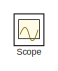
[diagram: root canvas - part 1/3, top left region]
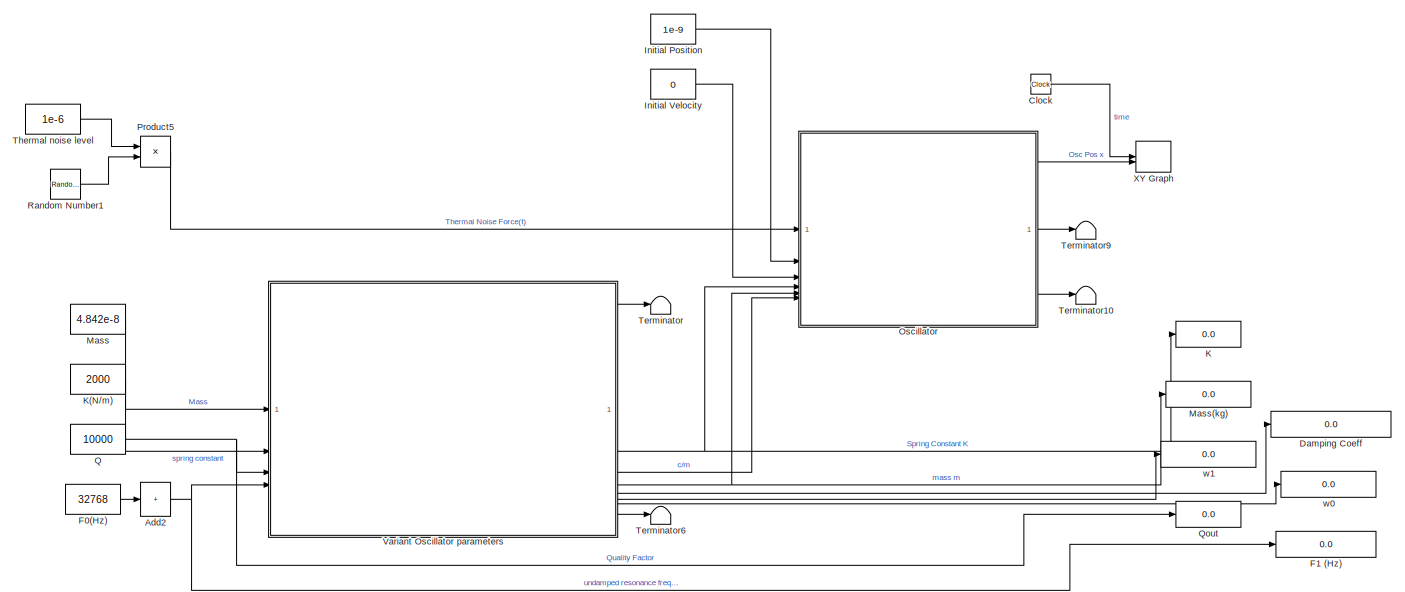
[diagram: root canvas - part 2/3, full width, middle band]
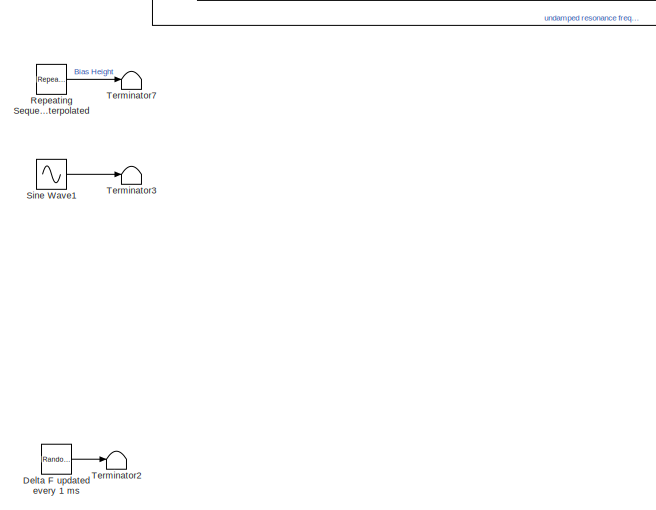
[diagram: root canvas - part 3/3, bottom left region]
MODEL slx_59d75a594377
KIND model
CONFIG AbsTol = auto
CONFIG EnableMultiTasking = off
CONFIG FixedStep = auto
CONFIG MaxStep = auto
CONFIG MinStep = auto
CONFIG RelTol = 1e-3
CONFIG SampleTimeConstraint = Unconstrained
CONFIG SolverName = VariableStepAuto
CONFIG StartTime = 0.0
CONFIG StopTime = 1
BLOCK [Sum] Add2
  IconShape = rectangular
  Inputs = +
BLOCK [Clock] Clock
BLOCK [Display] Damping Coeff
  Decimation = 1
  Format = long
BLOCK [RandomNumber] Delta F updated every 1 ms
  SampleTime = 1e-3
  Seed = 7546745
  Variance = 100
BLOCK [Constant] F0(Hz)
  SampleTime = -1
  Value = 32768
BLOCK [Display] F1 (Hz)
  Decimation = 1
  Format = long
BLOCK [Constant] Initial Position
  Value = 1e-9
  VectorParams1D = off
BLOCK [Constant] Initial Velocity
  Value = 0
BLOCK [Display] K
  Decimation = 1
  Format = long
BLOCK [Constant] K(N//m)
  Value = 2000
BLOCK [Constant] Mass
  Value = 4.842e-8
BLOCK [Display] Mass(kg)
  Decimation = 1
  Format = short_e
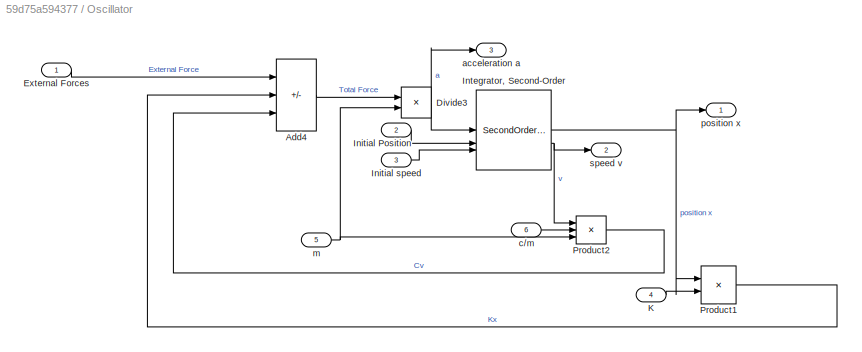
BLOCK [SubSystem] Oscillator
  NameLocation = top
BLOCK [Outport] Oscillator/ position x
BLOCK [Sum] Oscillator/Add4
  IconShape = rectangular
  Inputs = +--
BLOCK [Product] Oscillator/Divide3
  Inputs = */
BLOCK [Inport] Oscillator/External Forces
BLOCK [Inport] Oscillator/Initial Position
  Port = 2
BLOCK [Inport] Oscillator/Initial speed
  Port = 3
BLOCK [SecondOrderIntegrator] Oscillator/Integrator, Second-Order
  ICSourceDXDT = external
  ICSourceX = external
  LimitX = on
  LowerLimitX = -0.01
  UpperLimitX = 0.01
BLOCK [Inport] Oscillator/K
  Port = 4
BLOCK [Product] Oscillator/Product1
BLOCK [Product] Oscillator/Product2
  Inputs = 3
BLOCK [Outport] Oscillator/acceleration a
  Port = 3
BLOCK [Inport] Oscillator/c//m
  Port = 6
  Unit = N*sec/kg/m
BLOCK [Inport] Oscillator/m
  Port = 5
BLOCK [Outport] Oscillator/speed v
  Port = 2
BLOCK [Product] Product5
BLOCK [Constant] Q
  Value = 10000
BLOCK [Display] Qout
  Decimation = 1
  Format = long
BLOCK [RandomNumber] Random Number1
  SampleTime = 10^-8
  Seed = 4582
BLOCK [Reference] Repeating Sequence Interpolated  REF=simulink/Sources/Repeating
Sequence
Interpolated
  SourceBlock = simulink/Sources/Repeating\nSequence\nInterpolated
  SourceType = Repeating Sequence Interpolated
BLOCK [Scope] Scope
  Floating = off
  IOType = viewer
  NumInputPorts = 1
  ScopeSpecificationString = Simulink.scopes.TimeScopeBlockCfg('CurrentConfiguration', extmgr.ConfigurationSet(extmgr.Configuration('Core','General UI',true),extmgr.Configuration('Core','Source UI',true),extmgr.Configuration('Sources','WiredSimulink',true),extmgr.Configuration('Visuals','Time Domain',true,'SerializedDisplays',{struct('MinYLimReal','-10.00000','MaxYLimReal','10.00000','YLabelReal','','MinYLimMag','0.00000','Ma...<+1326ch>
BLOCK [Sin] Sine Wave1
  Amplitude = 20
  Frequency = 5000
  Phase = 0.0001
  SampleTime = 10e-6
BLOCK [Terminator] Terminator
BLOCK [Terminator] Terminator10
BLOCK [Terminator] Terminator2
BLOCK [Terminator] Terminator3
BLOCK [Terminator] Terminator6
BLOCK [Terminator] Terminator7
BLOCK [Terminator] Terminator9
BLOCK [Constant] Thermal noise level
  SampleTime = -1
  Value = 1e-6
  VectorParams1D = off
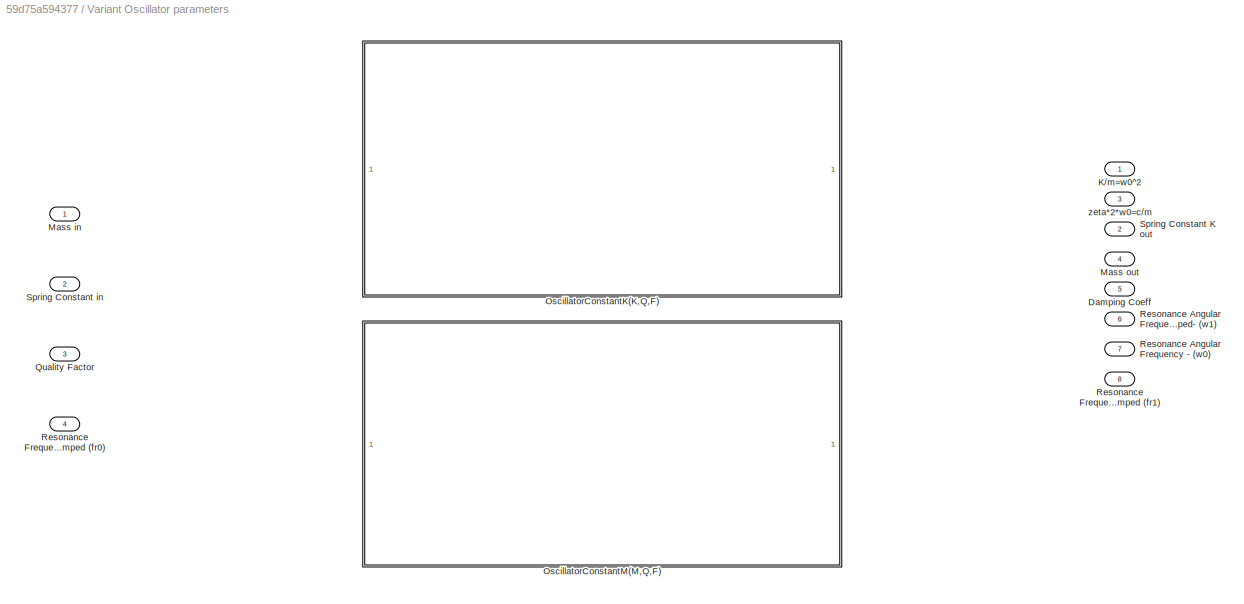
BLOCK [SubSystem] Variant Oscillator parameters
  LabelModeActiveChoice = OscillatorTypeVar==0
  PropagateVariantConditions = on
  Variant = on
  VariantControlMode = label
BLOCK [Outport] Variant Oscillator parameters/Damping Coeff
  Port = 5
  VectorParamsAs1DForOutWhenUnconnected = off
BLOCK [Outport] Variant Oscillator parameters/K//m=w0^2
  VectorParamsAs1DForOutWhenUnconnected = off
BLOCK [Inport] Variant Oscillator parameters/Mass in
  Unit = kg
BLOCK [Outport] Variant Oscillator parameters/Mass out
  Port = 4
  Unit = kg
  VectorParamsAs1DForOutWhenUnconnected = off
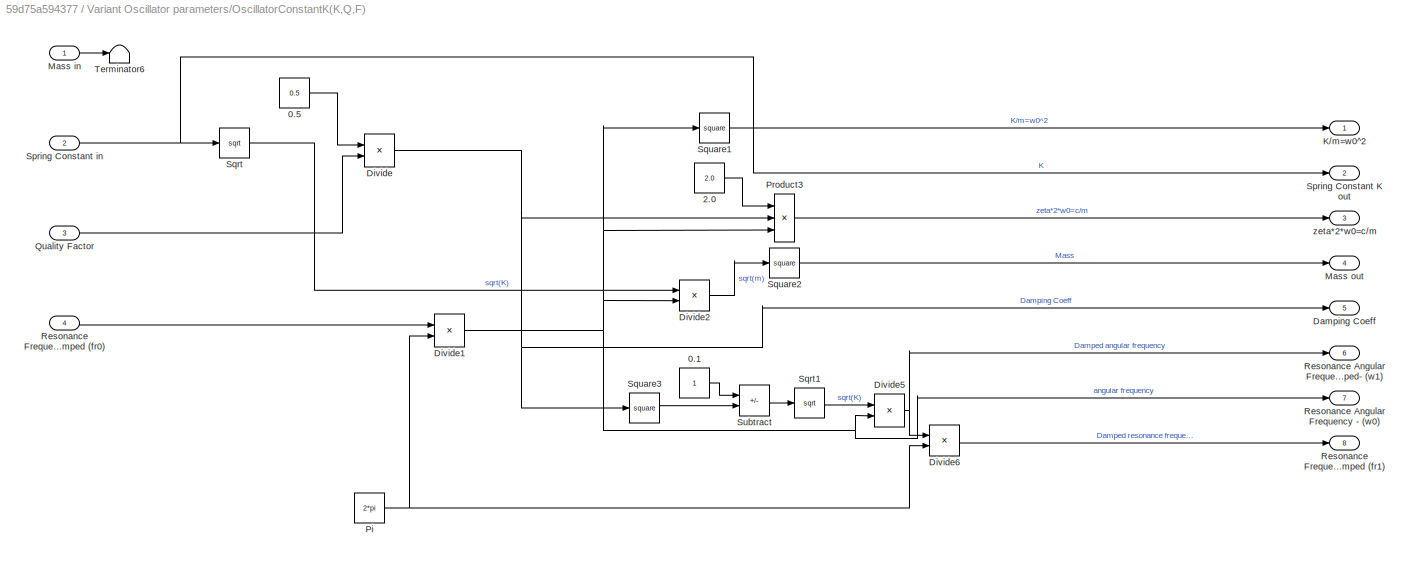
BLOCK [SubSystem] Variant Oscillator parameters/OscillatorConstantK(K,Q,F)
  VariantControl = OscillatorTypeVar==0
BLOCK [Constant] Variant Oscillator parameters/OscillatorConstantK(K,Q,F)/0.1
BLOCK [Constant] Variant Oscillator parameters/OscillatorConstantK(K,Q,F)/0.5
  Value = 0.5
BLOCK [Constant] Variant Oscillator parameters/OscillatorConstantK(K,Q,F)/2.0
  Value = 2.0
BLOCK [Outport] Variant Oscillator parameters/OscillatorConstantK(K,Q,F)/Damping Coeff
  Port = 5
  VectorParamsAs1DForOutWhenUnconnected = off
BLOCK [Product] Variant Oscillator parameters/OscillatorConstantK(K,Q,F)/Divide
  Inputs = */
BLOCK [Product] Variant Oscillator parameters/OscillatorConstantK(K,Q,F)/Divide1
  Inputs = **
BLOCK [Product] Variant Oscillator parameters/OscillatorConstantK(K,Q,F)/Divide2
  Inputs = */
BLOCK [Product] Variant Oscillator parameters/OscillatorConstantK(K,Q,F)/Divide5
  Inputs = **
BLOCK [Product] Variant Oscillator parameters/OscillatorConstantK(K,Q,F)/Divide6
  Inputs = */
BLOCK [Outport] Variant Oscillator parameters/OscillatorConstantK(K,Q,F)/K//m=w0^2
  VectorParamsAs1DForOutWhenUnconnected = off
BLOCK [Inport] Variant Oscillator parameters/OscillatorConstantK(K,Q,F)/Mass in
  Unit = kg
BLOCK [Outport] Variant Oscillator parameters/OscillatorConstantK(K,Q,F)/Mass out
  Port = 4
  Unit = kg
  VectorParamsAs1DForOutWhenUnconnected = off
BLOCK [Constant] Variant Oscillator parameters/OscillatorConstantK(K,Q,F)/Pi
  OutDataTypeStr = Inherit: Inherit via back propagation
  Value = 2*pi
BLOCK [Product] Variant Oscillator parameters/OscillatorConstantK(K,Q,F)/Product3
  Inputs = 3
BLOCK [Inport] Variant Oscillator parameters/OscillatorConstantK(K,Q,F)/Quality Factor
  Port = 3
BLOCK [Outport] Variant Oscillator parameters/OscillatorConstantK(K,Q,F)/Resonance Angular Frequency - (w0)
  Port = 7
  Unit = rad/sec
  VectorParamsAs1DForOutWhenUnconnected = off
BLOCK [Outport] Variant Oscillator parameters/OscillatorConstantK(K,Q,F)/Resonance Angular Frequency - Damped- (w1)
  Port = 6
  Unit = rad/sec
  VectorParamsAs1DForOutWhenUnconnected = off
BLOCK [Outport] Variant Oscillator parameters/OscillatorConstantK(K,Q,F)/Resonance Frequency - Damped (fr1)
  Port = 8
  Unit = Hz
  VectorParamsAs1DForOutWhenUnconnected = off
BLOCK [Inport] Variant Oscillator parameters/OscillatorConstantK(K,Q,F)/Resonance Frequency - undamped (fr0)
  Port = 4
  Unit = Hz
BLOCK [Outport] Variant Oscillator parameters/OscillatorConstantK(K,Q,F)/Spring Constant K out
  Port = 2
  Unit = N/m
  VectorParamsAs1DForOutWhenUnconnected = off
BLOCK [Inport] Variant Oscillator parameters/OscillatorConstantK(K,Q,F)/Spring Constant in
  Port = 2
  Unit = N/m
BLOCK [Sqrt] Variant Oscillator parameters/OscillatorConstantK(K,Q,F)/Sqrt
BLOCK [Sqrt] Variant Oscillator parameters/OscillatorConstantK(K,Q,F)/Sqrt1
BLOCK [Math] Variant Oscillator parameters/OscillatorConstantK(K,Q,F)/Square1
  Operator = square
  SignedPower = on
BLOCK [Math] Variant Oscillator parameters/OscillatorConstantK(K,Q,F)/Square2
  Operator = square
  SignedPower = on
BLOCK [Math] Variant Oscillator parameters/OscillatorConstantK(K,Q,F)/Square3
  Operator = square
  SignedPower = on
BLOCK [Sum] Variant Oscillator parameters/OscillatorConstantK(K,Q,F)/Subtract
  IconShape = rectangular
  Inputs = +-
BLOCK [Terminator] Variant Oscillator parameters/OscillatorConstantK(K,Q,F)/Terminator6
BLOCK [Outport] Variant Oscillator parameters/OscillatorConstantK(K,Q,F)/zeta*2*w0=c//m
  Port = 3
  VectorParamsAs1DForOutWhenUnconnected = off
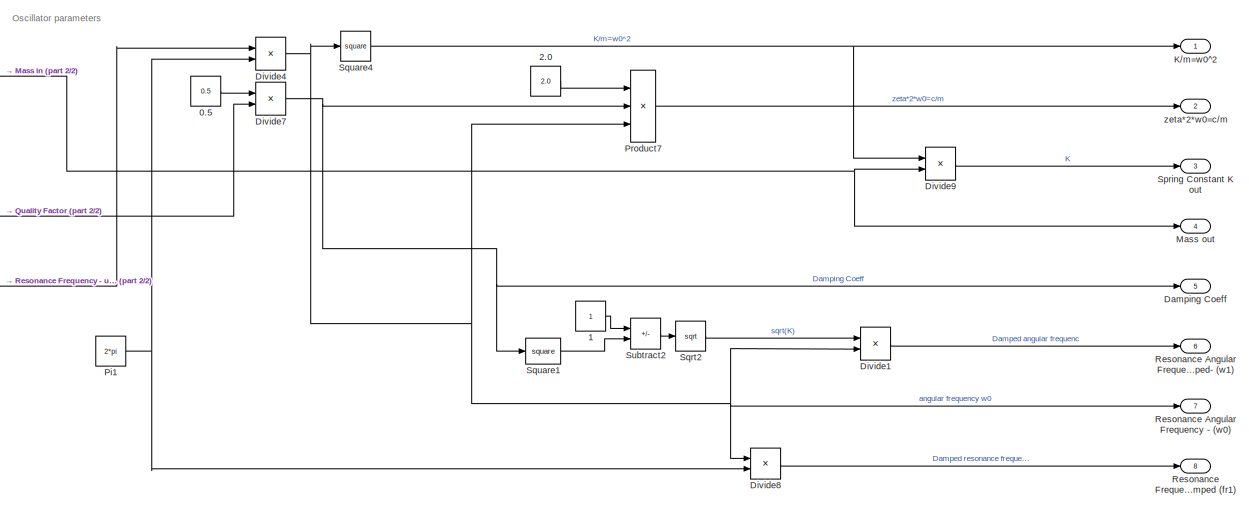
[diagram: Variant Oscillator parameters/OscillatorConstantM(M,Q,F) - part 1/2, most of the canvas]
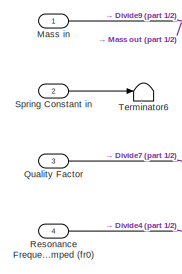
[diagram: Variant Oscillator parameters/OscillatorConstantM(M,Q,F) - part 2/2, middle left region]
BLOCK [SubSystem] Variant Oscillator parameters/OscillatorConstantM(M,Q,F)
  VariantControl = OscillatorTypeVar==1
BLOCK [Constant] Variant Oscillator parameters/OscillatorConstantM(M,Q,F)/0.5
  Value = 0.5
BLOCK [Constant] Variant Oscillator parameters/OscillatorConstantM(M,Q,F)/1
BLOCK [Constant] Variant Oscillator parameters/OscillatorConstantM(M,Q,F)/2.0
  Value = 2.0
BLOCK [Outport] Variant Oscillator parameters/OscillatorConstantM(M,Q,F)/Damping Coeff
  Port = 5
  VectorParamsAs1DForOutWhenUnconnected = off
BLOCK [Product] Variant Oscillator parameters/OscillatorConstantM(M,Q,F)/Divide1
  Inputs = **
BLOCK [Product] Variant Oscillator parameters/OscillatorConstantM(M,Q,F)/Divide4
  Inputs = **
BLOCK [Product] Variant Oscillator parameters/OscillatorConstantM(M,Q,F)/Divide7
  Inputs = */
BLOCK [Product] Variant Oscillator parameters/OscillatorConstantM(M,Q,F)/Divide8
  Inputs = */
BLOCK [Product] Variant Oscillator parameters/OscillatorConstantM(M,Q,F)/Divide9
  Inputs = **
BLOCK [Outport] Variant Oscillator parameters/OscillatorConstantM(M,Q,F)/K//m=w0^2
  Unit = N/(kg*m)
  VectorParamsAs1DForOutWhenUnconnected = off
BLOCK [Inport] Variant Oscillator parameters/OscillatorConstantM(M,Q,F)/Mass in
  Unit = kg
BLOCK [Outport] Variant Oscillator parameters/OscillatorConstantM(M,Q,F)/Mass out
  Port = 4
  Unit = kg
  VectorParamsAs1DForOutWhenUnconnected = off
BLOCK [Constant] Variant Oscillator parameters/OscillatorConstantM(M,Q,F)/Pi1
  OutDataTypeStr = Inherit: Inherit via back propagation
  Value = 2*pi
BLOCK [Product] Variant Oscillator parameters/OscillatorConstantM(M,Q,F)/Product7
  Inputs = 3
BLOCK [Inport] Variant Oscillator parameters/OscillatorConstantM(M,Q,F)/Quality Factor
  Port = 3
BLOCK [Outport] Variant Oscillator parameters/OscillatorConstantM(M,Q,F)/Resonance Angular Frequency - (w0)
  Port = 7
  Unit = rad/sec
  VectorParamsAs1DForOutWhenUnconnected = off
BLOCK [Outport] Variant Oscillator parameters/OscillatorConstantM(M,Q,F)/Resonance Angular Frequency - Damped- (w1)
  Port = 6
  Unit = rad/sec
  VectorParamsAs1DForOutWhenUnconnected = off
BLOCK [Outport] Variant Oscillator parameters/OscillatorConstantM(M,Q,F)/Resonance Frequency - Damped (fr1)
  Port = 8
  Unit = Hz
  VectorParamsAs1DForOutWhenUnconnected = off
BLOCK [Inport] Variant Oscillator parameters/OscillatorConstantM(M,Q,F)/Resonance Frequency - undamped (fr0)
  Port = 4
  Unit = Hz
BLOCK [Outport] Variant Oscillator parameters/OscillatorConstantM(M,Q,F)/Spring Constant K out
  Port = 3
  Unit = N/m
  VectorParamsAs1DForOutWhenUnconnected = off
BLOCK [Inport] Variant Oscillator parameters/OscillatorConstantM(M,Q,F)/Spring Constant in
  Port = 2
  Unit = N/m
BLOCK [Sqrt] Variant Oscillator parameters/OscillatorConstantM(M,Q,F)/Sqrt2
BLOCK [Math] Variant Oscillator parameters/OscillatorConstantM(M,Q,F)/Square1
  Operator = square
  SignedPower = on
BLOCK [Math] Variant Oscillator parameters/OscillatorConstantM(M,Q,F)/Square4
  Operator = square
  SignedPower = on
BLOCK [Sum] Variant Oscillator parameters/OscillatorConstantM(M,Q,F)/Subtract2
  IconShape = rectangular
  Inputs = +-
BLOCK [Terminator] Variant Oscillator parameters/OscillatorConstantM(M,Q,F)/Terminator6
BLOCK [Outport] Variant Oscillator parameters/OscillatorConstantM(M,Q,F)/zeta*2*w0=c//m
  Port = 2
  Unit = N*sec/kg/m
  VectorParamsAs1DForOutWhenUnconnected = off
BLOCK [Inport] Variant Oscillator parameters/Quality Factor
  Port = 3
BLOCK [Outport] Variant Oscillator parameters/Resonance Angular Frequency - (w0)
  Port = 7
  Unit = rad/sec
  VectorParamsAs1DForOutWhenUnconnected = off
BLOCK [Outport] Variant Oscillator parameters/Resonance Angular Frequency - Damped- (w1)
  Port = 6
  Unit = rad/sec
  VectorParamsAs1DForOutWhenUnconnected = off
BLOCK [Outport] Variant Oscillator parameters/Resonance Frequency - Damped (fr1)
  Port = 8
  Unit = Hz
  VectorParamsAs1DForOutWhenUnconnected = off
BLOCK [Inport] Variant Oscillator parameters/Resonance Frequency - undamped (fr0)
  Port = 4
  Unit = Hz
BLOCK [Outport] Variant Oscillator parameters/Spring Constant K out
  Port = 2
  Unit = N/m
  VectorParamsAs1DForOutWhenUnconnected = off
BLOCK [Inport] Variant Oscillator parameters/Spring Constant in
  Port = 2
  Unit = N/m
BLOCK [Outport] Variant Oscillator parameters/zeta*2*w0=c//m
  Port = 3
  Unit = N*sec/kg/m
  VectorParamsAs1DForOutWhenUnconnected = off
BLOCK [Record] XY Graph
  CompatibilityTag = XY
  FileSettingsInternal = {"entries":[{"content":{"excelSettings":{"content":{},"type":"Streamout.ExcelSettings"}},"type":"Streamout.FileSettingStorage","uuid":"efa23a6c-4987-48e8-b3f0-6b34ea382b02"}],"packageUris":["http://schema.mathworks.com/mf0/streamout_blocks/R2020a"],"version":"1.0"}
  Layout = [1 1]
  SignalsInternal = {"entries":[{"content":{"signals":[{"content":{"blockPath":["OscOnly/XY Graph"],"channel":[],"dimensions":[1],"domain":"OscOnly/XY Graph","lineColor":"#a2142f","plots":[1],"port":1,"sid":[""],"signalID":691948,"signalName":"time"},"type":"RecordBlkView.Signal","uuid":"d217d77e-fb47-4b7d-b3a2-eb88acfcbc3e"},{"content":{"blockPath":["OscOnly/XY Graph"],"channel":[],"dimensions":[1],"domain":"OscOnly...<+362ch>
  VisualizationBindings = {"xyplotplugin":{"info":[{"series":[{"bindingParametersList":[{"parameter":"X-Axis","signalID":691948,"signalName":"time"},{"parameter":"Y-Axis","signalID":691952,"signalName":"Osc Pos x"}],"seriesID":49762}],"subplotID":1}]}}
BLOCK [Display] w0
  Decimation = 1
  Format = long
BLOCK [Display] w1
  Decimation = 1
  Format = long
ANNOTATION Variant Oscillator parameters/OscillatorConstantM(M,Q,F): Oscillator parameters
NET Add2:1 -> F1 (Hz):1, Variant Oscillator parameters:4
LINE Clock:1 -> XY Graph:1
LINE Delta F updated every 1 ms:1 -> Terminator2:1
LINE F0(Hz):1 -> Add2:1
LINE Initial Position:1 -> Oscillator:2
LINE Initial Velocity:1 -> Oscillator:3
LINE K(N//m):1 -> Variant Oscillator parameters:2
LINE Mass:1 -> Variant Oscillator parameters:1
LINE Oscillator/Add4:1 -> Oscillator/Divide3:1
NET Oscillator/Divide3:1 -> Oscillator/Integrator, Second-Order:1, Oscillator/acceleration a:1
LINE Oscillator/External Forces:1 -> Oscillator/Add4:1
LINE Oscillator/Initial Position:1 -> Oscillator/Integrator, Second-Order:2
LINE Oscillator/Initial speed:1 -> Oscillator/Integrator, Second-Order:3
NET Oscillator/Integrator, Second-Order:1 -> Oscillator/ position x:1, Oscillator/Product1:1
NET Oscillator/Integrator, Second-Order:2 -> Oscillator/Product2:1, Oscillator/speed v:1
LINE Oscillator/K:1 -> Oscillator/Product1:2
LINE Oscillator/Product1:1 -> Oscillator/Add4:2
LINE Oscillator/Product2:1 -> Oscillator/Add4:3
LINE Oscillator/c//m:1 -> Oscillator/Product2:2
NET Oscillator/m:1 -> Oscillator/Divide3:2, Oscillator/Product2:3
LINE Oscillator:1 -> XY Graph:2
LINE Oscillator:2 -> Terminator9:1
LINE Oscillator:3 -> Terminator10:1
LINE Product5:1 -> Oscillator:1
NET Q:1 -> Qout:1, Variant Oscillator parameters:3
LINE Random Number1:1 -> Product5:2
LINE Repeating Sequence Interpolated:1 -> Terminator7:1
LINE Sine Wave1:1 -> Terminator3:1
LINE Thermal noise level:1 -> Product5:1
LINE Variant Oscillator parameters/OscillatorConstantK(K,Q,F)/0.1:1 -> Variant Oscillator parameters/OscillatorConstantK(K,Q,F)/Subtract:1
LINE Variant Oscillator parameters/OscillatorConstantK(K,Q,F)/0.5:1 -> Variant Oscillator parameters/OscillatorConstantK(K,Q,F)/Divide:1
LINE Variant Oscillator parameters/OscillatorConstantK(K,Q,F)/2.0:1 -> Variant Oscillator parameters/OscillatorConstantK(K,Q,F)/Product3:1
NET Variant Oscillator parameters/OscillatorConstantK(K,Q,F)/Divide1:1 -> Variant Oscillator parameters/OscillatorConstantK(K,Q,F)/Divide2:2, Variant Oscillator parameters/OscillatorConstantK(K,Q,F)/Divide5:2, Variant Oscillator parameters/OscillatorConstantK(K,Q,F)/Product3:3, Variant Oscillator parameters/OscillatorConstantK(K,Q,F)/Resonance Angular Frequency - (w0):1, Variant Oscillator parameters/OscillatorConstantK(K,Q,F)/Square1:1
LINE Variant Oscillator parameters/OscillatorConstantK(K,Q,F)/Divide2:1 -> Variant Oscillator parameters/OscillatorConstantK(K,Q,F)/Square2:1
NET Variant Oscillator parameters/OscillatorConstantK(K,Q,F)/Divide5:1 -> Variant Oscillator parameters/OscillatorConstantK(K,Q,F)/Divide6:1, Variant Oscillator parameters/OscillatorConstantK(K,Q,F)/Resonance Angular Frequency - Damped- (w1):1
LINE Variant Oscillator parameters/OscillatorConstantK(K,Q,F)/Divide6:1 -> Variant Oscillator parameters/OscillatorConstantK(K,Q,F)/Resonance Frequency - Damped (fr1):1
NET Variant Oscillator parameters/OscillatorConstantK(K,Q,F)/Divide:1 -> Variant Oscillator parameters/OscillatorConstantK(K,Q,F)/Damping Coeff:1, Variant Oscillator parameters/OscillatorConstantK(K,Q,F)/Product3:2, Variant Oscillator parameters/OscillatorConstantK(K,Q,F)/Square3:1
LINE Variant Oscillator parameters/OscillatorConstantK(K,Q,F)/Mass in:1 -> Variant Oscillator parameters/OscillatorConstantK(K,Q,F)/Terminator6:1
NET Variant Oscillator parameters/OscillatorConstantK(K,Q,F)/Pi:1 -> Variant Oscillator parameters/OscillatorConstantK(K,Q,F)/Divide1:2, Variant Oscillator parameters/OscillatorConstantK(K,Q,F)/Divide6:2
LINE Variant Oscillator parameters/OscillatorConstantK(K,Q,F)/Product3:1 -> Variant Oscillator parameters/OscillatorConstantK(K,Q,F)/zeta*2*w0=c//m:1
LINE Variant Oscillator parameters/OscillatorConstantK(K,Q,F)/Quality Factor:1 -> Variant Oscillator parameters/OscillatorConstantK(K,Q,F)/Divide:2
LINE Variant Oscillator parameters/OscillatorConstantK(K,Q,F)/Resonance Frequency - undamped (fr0):1 -> Variant Oscillator parameters/OscillatorConstantK(K,Q,F)/Divide1:1
NET Variant Oscillator parameters/OscillatorConstantK(K,Q,F)/Spring Constant in:1 -> Variant Oscillator parameters/OscillatorConstantK(K,Q,F)/Spring Constant K out:1, Variant Oscillator parameters/OscillatorConstantK(K,Q,F)/Sqrt:1
LINE Variant Oscillator parameters/OscillatorConstantK(K,Q,F)/Sqrt1:1 -> Variant Oscillator parameters/OscillatorConstantK(K,Q,F)/Divide5:1
LINE Variant Oscillator parameters/OscillatorConstantK(K,Q,F)/Sqrt:1 -> Variant Oscillator parameters/OscillatorConstantK(K,Q,F)/Divide2:1
LINE Variant Oscillator parameters/OscillatorConstantK(K,Q,F)/Square1:1 -> Variant Oscillator parameters/OscillatorConstantK(K,Q,F)/K//m=w0^2:1
LINE Variant Oscillator parameters/OscillatorConstantK(K,Q,F)/Square2:1 -> Variant Oscillator parameters/OscillatorConstantK(K,Q,F)/Mass out:1
LINE Variant Oscillator parameters/OscillatorConstantK(K,Q,F)/Square3:1 -> Variant Oscillator parameters/OscillatorConstantK(K,Q,F)/Subtract:2
LINE Variant Oscillator parameters/OscillatorConstantK(K,Q,F)/Subtract:1 -> Variant Oscillator parameters/OscillatorConstantK(K,Q,F)/Sqrt1:1
LINE Variant Oscillator parameters/OscillatorConstantM(M,Q,F)/0.5:1 -> Variant Oscillator parameters/OscillatorConstantM(M,Q,F)/Divide7:1
LINE Variant Oscillator parameters/OscillatorConstantM(M,Q,F)/1:1 -> Variant Oscillator parameters/OscillatorConstantM(M,Q,F)/Subtract2:1
LINE Variant Oscillator parameters/OscillatorConstantM(M,Q,F)/2.0:1 -> Variant Oscillator parameters/OscillatorConstantM(M,Q,F)/Product7:1
LINE Variant Oscillator parameters/OscillatorConstantM(M,Q,F)/Divide1:1 -> Variant Oscillator parameters/OscillatorConstantM(M,Q,F)/Resonance Angular Frequency - Damped- (w1):1
NET Variant Oscillator parameters/OscillatorConstantM(M,Q,F)/Divide4:1 -> Variant Oscillator parameters/OscillatorConstantM(M,Q,F)/Divide1:2, Variant Oscillator parameters/OscillatorConstantM(M,Q,F)/Divide8:1, Variant Oscillator parameters/OscillatorConstantM(M,Q,F)/Product7:3, Variant Oscillator parameters/OscillatorConstantM(M,Q,F)/Resonance Angular Frequency - (w0):1, Variant Oscillator parameters/OscillatorConstantM(M,Q,F)/Square4:1
NET Variant Oscillator parameters/OscillatorConstantM(M,Q,F)/Divide7:1 -> Variant Oscillator parameters/OscillatorConstantM(M,Q,F)/Damping Coeff:1, Variant Oscillator parameters/OscillatorConstantM(M,Q,F)/Product7:2, Variant Oscillator parameters/OscillatorConstantM(M,Q,F)/Square1:1
LINE Variant Oscillator parameters/OscillatorConstantM(M,Q,F)/Divide8:1 -> Variant Oscillator parameters/OscillatorConstantM(M,Q,F)/Resonance Frequency - Damped (fr1):1
LINE Variant Oscillator parameters/OscillatorConstantM(M,Q,F)/Divide9:1 -> Variant Oscillator parameters/OscillatorConstantM(M,Q,F)/Spring Constant K out:1
NET Variant Oscillator parameters/OscillatorConstantM(M,Q,F)/Mass in:1 -> Variant Oscillator parameters/OscillatorConstantM(M,Q,F)/Divide9:2, Variant Oscillator parameters/OscillatorConstantM(M,Q,F)/Mass out:1
NET Variant Oscillator parameters/OscillatorConstantM(M,Q,F)/Pi1:1 -> Variant Oscillator parameters/OscillatorConstantM(M,Q,F)/Divide4:2, Variant Oscillator parameters/OscillatorConstantM(M,Q,F)/Divide8:2
LINE Variant Oscillator parameters/OscillatorConstantM(M,Q,F)/Product7:1 -> Variant Oscillator parameters/OscillatorConstantM(M,Q,F)/zeta*2*w0=c//m:1
LINE Variant Oscillator parameters/OscillatorConstantM(M,Q,F)/Quality Factor:1 -> Variant Oscillator parameters/OscillatorConstantM(M,Q,F)/Divide7:2
LINE Variant Oscillator parameters/OscillatorConstantM(M,Q,F)/Resonance Frequency - undamped (fr0):1 -> Variant Oscillator parameters/OscillatorConstantM(M,Q,F)/Divide4:1
LINE Variant Oscillator parameters/OscillatorConstantM(M,Q,F)/Spring Constant in:1 -> Variant Oscillator parameters/OscillatorConstantM(M,Q,F)/Terminator6:1
LINE Variant Oscillator parameters/OscillatorConstantM(M,Q,F)/Sqrt2:1 -> Variant Oscillator parameters/OscillatorConstantM(M,Q,F)/Divide1:1
LINE Variant Oscillator parameters/OscillatorConstantM(M,Q,F)/Square1:1 -> Variant Oscillator parameters/OscillatorConstantM(M,Q,F)/Subtract2:2
NET Variant Oscillator parameters/OscillatorConstantM(M,Q,F)/Square4:1 -> Variant Oscillator parameters/OscillatorConstantM(M,Q,F)/Divide9:1, Variant Oscillator parameters/OscillatorConstantM(M,Q,F)/K//m=w0^2:1
LINE Variant Oscillator parameters/OscillatorConstantM(M,Q,F)/Subtract2:1 -> Variant Oscillator parameters/OscillatorConstantM(M,Q,F)/Sqrt2:1
LINE Variant Oscillator parameters:1 -> Terminator:1
NET Variant Oscillator parameters:2 -> K:1, Oscillator:4
LINE Variant Oscillator parameters:3 -> Oscillator:6
NET Variant Oscillator parameters:4 -> Mass(kg):1, Oscillator:5
LINE Variant Oscillator parameters:5 -> Damping Coeff:1
LINE Variant Oscillator parameters:6 -> w1:1
LINE Variant Oscillator parameters:7 -> w0:1
LINE Variant Oscillator parameters:8 -> Terminator6:1
note: NET lines group one-source signal fan-out (src -> all destinations, sorted); 1:1 wires keep LINE
